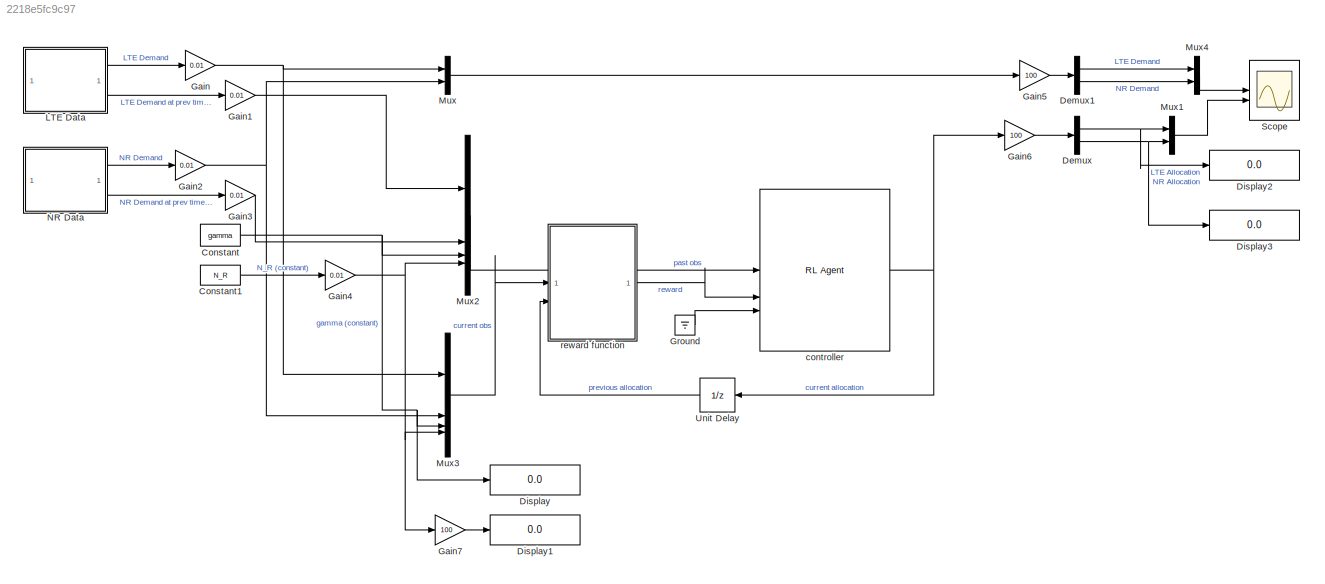
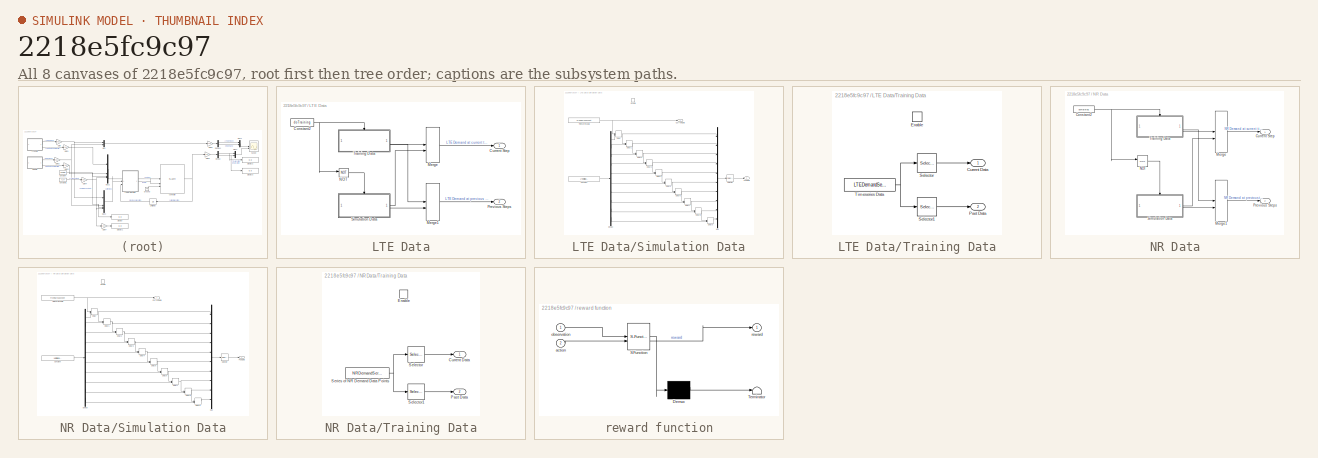
[diagram: thumbnail index - all 8 canvases of the model, root first then tree order]
MODEL slx_2218e5fc9c97
KIND model
CONFIG AbsTol = auto
CONFIG EnableMultiTasking = off
CONFIG FixedStep = auto
CONFIG MaxStep = auto
CONFIG MinStep = auto
CONFIG RelTol = 1e-3
CONFIG SampleTimeConstraint = Unconstrained
CONFIG SolverName = VariableStepAuto
CONFIG StartTime = 0.0
CONFIG StopTime = 30
BLOCK [Constant] Constant
  Value = gamma
BLOCK [Constant] Constant1
  Value = N_R
BLOCK [Demux] Demux
  Outputs = 2
BLOCK [Demux] Demux1
  Outputs = 2
BLOCK [Display] Display
  Decimation = 1
BLOCK [Display] Display1
  Decimation = 1
BLOCK [Display] Display2
  Decimation = 1
BLOCK [Display] Display3
  Decimation = 1
BLOCK [Gain] Gain
  Gain = 0.01
BLOCK [Gain] Gain1
  Gain = 0.01
BLOCK [Gain] Gain2
  Gain = 0.01
BLOCK [Gain] Gain3
  Gain = 0.01
BLOCK [Gain] Gain4
  Gain = 0.01
BLOCK [Gain] Gain5
  Gain = 100
BLOCK [Gain] Gain6
  Gain = 100
BLOCK [Gain] Gain7
  Gain = 100
BLOCK [Ground] Ground
BLOCK [SubSystem] LTE Data
BLOCK [Constant] LTE Data/Constant2
  Value = doTraining
BLOCK [Outport] LTE Data/Current Step
BLOCK [Merge] LTE Data/Merge
BLOCK [Merge] LTE Data/Merge1
BLOCK [Logic] LTE Data/NOT
  AllPortsSameDT = off
  Operator = NOT
  OutDataTypeStr = boolean
BLOCK [Outport] LTE Data/Previous Steps
  Port = 2
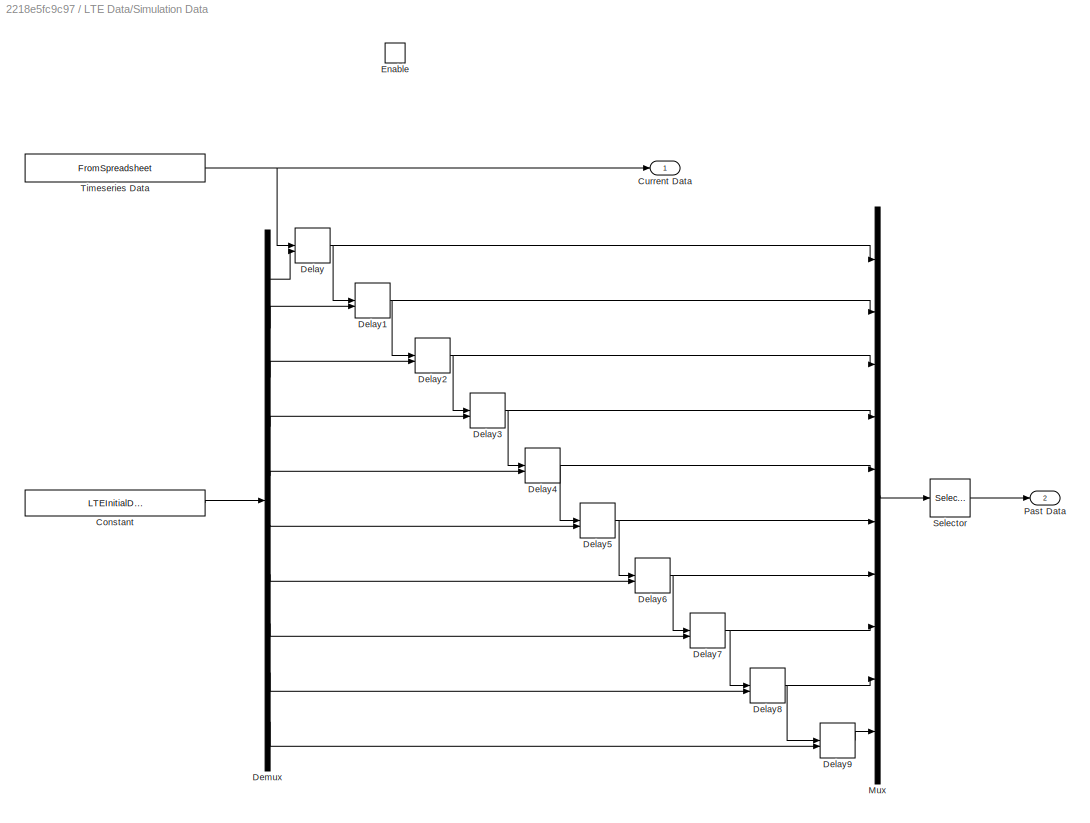
BLOCK [SubSystem] LTE Data/Simulation Data
  TreatAsAtomicUnit = on
BLOCK [Constant] LTE Data/Simulation Data/Constant
  Value = LTEInitialDemand
BLOCK [Outport] LTE Data/Simulation Data/Current Data
BLOCK [Delay] LTE Data/Simulation Data/Delay
  DelayLength = 1
  InitialConditionSource = Input port
  InputPortMap = u0,p4
BLOCK [Delay] LTE Data/Simulation Data/Delay1
  DelayLength = 1
  InitialConditionSource = Input port
  InputPortMap = u0,p4
BLOCK [Delay] LTE Data/Simulation Data/Delay2
  DelayLength = 1
  InitialConditionSource = Input port
  InputPortMap = u0,p4
BLOCK [Delay] LTE Data/Simulation Data/Delay3
  DelayLength = 1
  InitialConditionSource = Input port
  InputPortMap = u0,p4
BLOCK [Delay] LTE Data/Simulation Data/Delay4
  DelayLength = 1
  InitialConditionSource = Input port
  InputPortMap = u0,p4
BLOCK [Delay] LTE Data/Simulation Data/Delay5
  DelayLength = 1
  InitialConditionSource = Input port
  InputPortMap = u0,p4
BLOCK [Delay] LTE Data/Simulation Data/Delay6
  DelayLength = 1
  InitialConditionSource = Input port
  InputPortMap = u0,p4
BLOCK [Delay] LTE Data/Simulation Data/Delay7
  DelayLength = 1
  InitialConditionSource = Input port
  InputPortMap = u0,p4
BLOCK [Delay] LTE Data/Simulation Data/Delay8
  DelayLength = 1
  InitialConditionSource = Input port
  InputPortMap = u0,p4
BLOCK [Delay] LTE Data/Simulation Data/Delay9
  DelayLength = 1
  InitialConditionSource = Input port
  InputPortMap = u0,p4
BLOCK [Demux] LTE Data/Simulation Data/Demux
  Outputs = 10
BLOCK [EnablePort] LTE Data/Simulation Data/Enable
BLOCK [Mux] LTE Data/Simulation Data/Mux
  DisplayOption = bar
  Inputs = 10
BLOCK [Outport] LTE Data/Simulation Data/Past Data
  Port = 2
BLOCK [Selector] LTE Data/Simulation Data/Selector
  IndexOptions = Index vector (dialog)
  Indices = 1:numPastDataPoints
  InputPortWidth = 10
  OutputSizes = 1
BLOCK [FromSpreadsheet] LTE Data/Simulation Data/Timeseries Data
  FileName = LTE_Demand_0.xlsx
  OutputAfterLastPoint = Hold final value
  Range = B1:B861
  SampleTime = 1
  SheetName = Output_2115_hourly
  TreatFirstColumnAs = Data
BLOCK [SubSystem] LTE Data/Training Data
  TreatAsAtomicUnit = on
BLOCK [Outport] LTE Data/Training Data/Current Data
BLOCK [EnablePort] LTE Data/Training Data/Enable
BLOCK [Outport] LTE Data/Training Data/Past Data
  Port = 2
BLOCK [Selector] LTE Data/Training Data/Selector
  IndexOptions = Index vector (dialog)
  Indices = 1
  InputPortWidth = numPastDataPoints + 1
  OutputSizes = 1
BLOCK [Selector] LTE Data/Training Data/Selector1
  IndexOptions = Index vector (dialog)
  Indices = 2:numPastDataPoints+1
  InputPortWidth = numPastDataPoints + 1
  OutputSizes = 1
BLOCK [Constant] LTE Data/Training Data/Timeseries Data
  Value = LTEDemandSeries
BLOCK [Mux] Mux
  DisplayOption = bar
  Inputs = 2
BLOCK [Mux] Mux1
  DisplayOption = bar
  Inputs = 2
BLOCK [Mux] Mux2
  DisplayOption = bar
BLOCK [Mux] Mux3
  DisplayOption = bar
BLOCK [Mux] Mux4
  DisplayOption = bar
  Inputs = 2
BLOCK [SubSystem] NR Data
BLOCK [Constant] NR Data/Constant2
  Value = doTraining
BLOCK [Outport] NR Data/Current Step
BLOCK [Merge] NR Data/Merge
BLOCK [Merge] NR Data/Merge1
BLOCK [Logic] NR Data/NOT
  AllPortsSameDT = off
  Operator = NOT
  OutDataTypeStr = boolean
BLOCK [Outport] NR Data/Previous Steps
  Port = 2
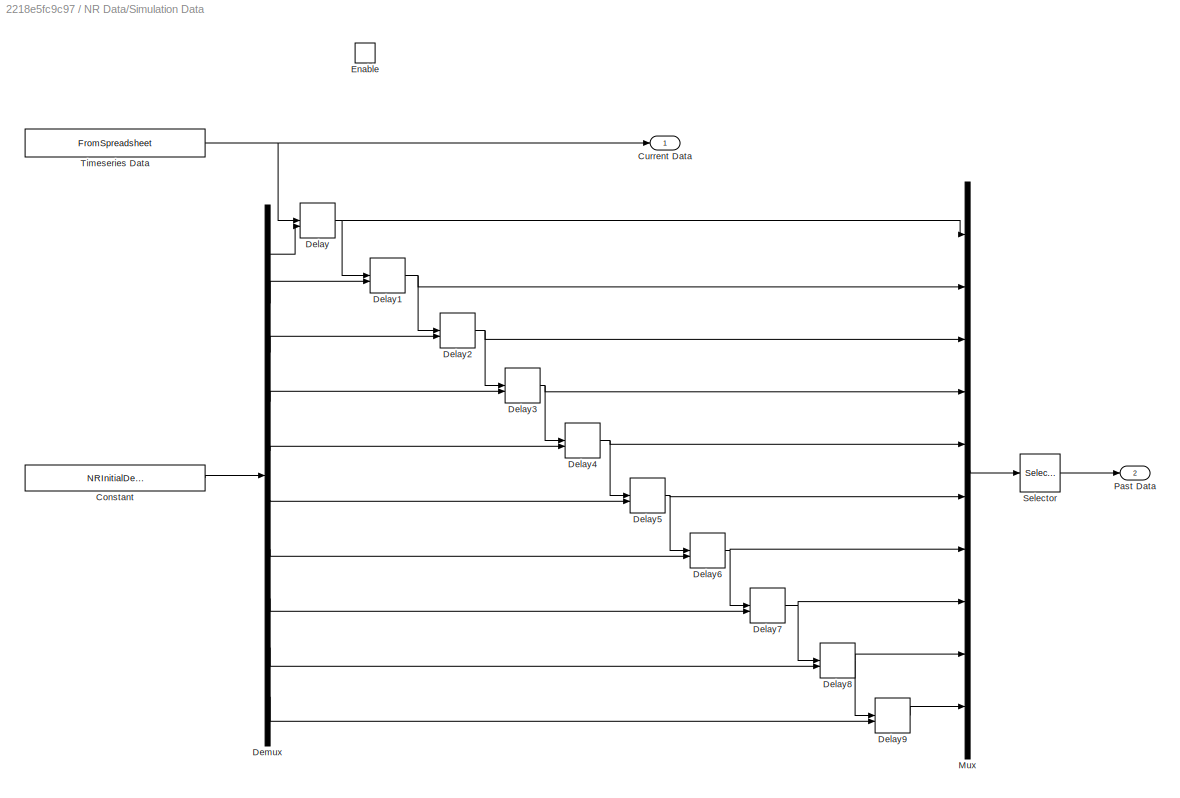
BLOCK [SubSystem] NR Data/Simulation Data
  TreatAsAtomicUnit = on
BLOCK [Constant] NR Data/Simulation Data/Constant
  Value = NRInitialDemand
BLOCK [Outport] NR Data/Simulation Data/Current Data
BLOCK [Delay] NR Data/Simulation Data/Delay
  DelayLength = 1
  InitialConditionSource = Input port
  InputPortMap = u0,p4
BLOCK [Delay] NR Data/Simulation Data/Delay1
  DelayLength = 1
  InitialConditionSource = Input port
  InputPortMap = u0,p4
BLOCK [Delay] NR Data/Simulation Data/Delay2
  DelayLength = 1
  InitialConditionSource = Input port
  InputPortMap = u0,p4
BLOCK [Delay] NR Data/Simulation Data/Delay3
  DelayLength = 1
  InitialConditionSource = Input port
  InputPortMap = u0,p4
BLOCK [Delay] NR Data/Simulation Data/Delay4
  DelayLength = 1
  InitialConditionSource = Input port
  InputPortMap = u0,p4
BLOCK [Delay] NR Data/Simulation Data/Delay5
  DelayLength = 1
  InitialConditionSource = Input port
  InputPortMap = u0,p4
BLOCK [Delay] NR Data/Simulation Data/Delay6
  DelayLength = 1
  InitialConditionSource = Input port
  InputPortMap = u0,p4
BLOCK [Delay] NR Data/Simulation Data/Delay7
  DelayLength = 1
  InitialConditionSource = Input port
  InputPortMap = u0,p4
BLOCK [Delay] NR Data/Simulation Data/Delay8
  DelayLength = 1
  InitialConditionSource = Input port
  InputPortMap = u0,p4
BLOCK [Delay] NR Data/Simulation Data/Delay9
  DelayLength = 1
  InitialConditionSource = Input port
  InputPortMap = u0,p4
BLOCK [Demux] NR Data/Simulation Data/Demux
  Outputs = 10
BLOCK [EnablePort] NR Data/Simulation Data/Enable
BLOCK [Mux] NR Data/Simulation Data/Mux
  DisplayOption = bar
  Inputs = 10
BLOCK [Outport] NR Data/Simulation Data/Past Data
  Port = 2
BLOCK [Selector] NR Data/Simulation Data/Selector
  IndexOptions = Index vector (dialog)
  Indices = 1:numPastDataPoints
  InputPortWidth = 10
  OutputSizes = 1
BLOCK [FromSpreadsheet] NR Data/Simulation Data/Timeseries Data
  FileName = NR_Demand_0.xlsx
  OutputAfterLastPoint = Hold final value
  Range = B11:B861
  SampleTime = 1
  SheetName = Output_2115_hourly_NR
  TreatFirstColumnAs = Data
BLOCK [SubSystem] NR Data/Training Data
  TreatAsAtomicUnit = on
BLOCK [Outport] NR Data/Training Data/Current Data
BLOCK [EnablePort] NR Data/Training Data/Enable
BLOCK [Outport] NR Data/Training Data/Past Data
  Port = 2
BLOCK [Selector] NR Data/Training Data/Selector
  IndexOptions = Index vector (dialog)
  Indices = 1
  InputPortWidth = numPastDataPoints + 1
  OutputSizes = 1
BLOCK [Selector] NR Data/Training Data/Selector1
  IndexOptions = Index vector (dialog)
  Indices = 2:numPastDataPoints+1
  InputPortWidth = numPastDataPoints + 1
  OutputSizes = 1
BLOCK [Constant] NR Data/Training Data/Series of NR Demand Data Points
  Value = NRDemandSeries
BLOCK [Scope] Scope
  Floating = off
  NumInputPorts = 2
  ScopeSpecificationString = Simulink.scopes.TimeScopeBlockCfg('CurrentConfiguration', extmgr.ConfigurationSet(extmgr.Configuration('Core','General UI',true),extmgr.Configuration('Core','Source UI',true),extmgr.Configuration('Sources','WiredSimulink',true),extmgr.Configuration('Visuals','Time Domain',true,'SerializedDisplays',{struct('MinYLimReal','2.85653','MaxYLimReal','28.9655','YLabelReal','','MinYLimMag','2.85653','MaxYL...<+1601ch>
BLOCK [UnitDelay] Unit Delay
  HasFrameUpgradeWarning = on
  InitialCondition = initAllocation
  SampleTime = -1
BLOCK [Reference] controller  REF=rllib/RL Agent
  SourceBlock = rllib/RL Agent
  SourceType = RL Agent
BLOCK [SubSystem] reward function
  ErrorFcn = Stateflow.Translate.translate
  PermitHierarchicalResolution = ExplicitOnly
  SFBlockType = MATLAB Function
  TreatAsAtomicUnit = on
BLOCK [Demux] reward function/ Demux 
  Outputs = 1
BLOCK [S-Function] reward function/ SFunction 
  EnableBusSupport = on
  FunctionName = sf_sfun
  PortCounts = [2 2]
  SFcnIsStateOwnerBlock = off
  SFunctionDeploymentMode = off
  Tag = Stateflow S-Function 1
BLOCK [Terminator] reward function/ Terminator 
BLOCK [Inport] reward function/action
  Port = 2
BLOCK [Inport] reward function/observation
BLOCK [Outport] reward function/reward
LINE Constant1:1 -> Gain4:1
NET Constant:1 -> Display:1, Mux2:3, Mux3:3
LINE Demux1:1 -> Mux4:1
LINE Demux1:2 -> Mux4:2
NET Demux:1 -> Display2:1, Mux1:1
NET Demux:2 -> Display3:1, Mux1:2
LINE Gain1:1 -> Mux2:1
NET Gain2:1 -> Mux3:2, Mux:2
LINE Gain3:1 -> Mux2:2
NET Gain4:1 -> Gain7:1, Mux2:4, Mux3:4
LINE Gain5:1 -> Demux1:1
LINE Gain6:1 -> Demux:1
LINE Gain7:1 -> Display1:1
NET Gain:1 -> Mux3:1, Mux:1
LINE Ground:1 -> controller:3
NET LTE Data/Constant2:1 -> LTE Data/NOT:1, LTE Data/Training Data:enable
LINE LTE Data/Merge1:1 -> LTE Data/Previous Steps:1
LINE LTE Data/Merge:1 -> LTE Data/Current Step:1
LINE LTE Data/NOT:1 -> LTE Data/Simulation Data:enable
LINE LTE Data/Simulation Data/Constant:1 -> LTE Data/Simulation Data/Demux:1
NET LTE Data/Simulation Data/Delay1:1 -> LTE Data/Simulation Data/Delay2:1, LTE Data/Simulation Data/Mux:2
NET LTE Data/Simulation Data/Delay2:1 -> LTE Data/Simulation Data/Delay3:1, LTE Data/Simulation Data/Mux:3
NET LTE Data/Simulation Data/Delay3:1 -> LTE Data/Simulation Data/Delay4:1, LTE Data/Simulation Data/Mux:4
NET LTE Data/Simulation Data/Delay4:1 -> LTE Data/Simulation Data/Delay5:1, LTE Data/Simulation Data/Mux:5
NET LTE Data/Simulation Data/Delay5:1 -> LTE Data/Simulation Data/Delay6:1, LTE Data/Simulation Data/Mux:6
NET LTE Data/Simulation Data/Delay6:1 -> LTE Data/Simulation Data/Delay7:1, LTE Data/Simulation Data/Mux:7
NET LTE Data/Simulation Data/Delay7:1 -> LTE Data/Simulation Data/Delay8:1, LTE Data/Simulation Data/Mux:8
NET LTE Data/Simulation Data/Delay8:1 -> LTE Data/Simulation Data/Delay9:1, LTE Data/Simulation Data/Mux:9
LINE LTE Data/Simulation Data/Delay9:1 -> LTE Data/Simulation Data/Mux:10
NET LTE Data/Simulation Data/Delay:1 -> LTE Data/Simulation Data/Delay1:1, LTE Data/Simulation Data/Mux:1
LINE LTE Data/Simulation Data/Demux:1 -> LTE Data/Simulation Data/Delay:2
LINE LTE Data/Simulation Data/Demux:10 -> LTE Data/Simulation Data/Delay9:2
LINE LTE Data/Simulation Data/Demux:2 -> LTE Data/Simulation Data/Delay1:2
LINE LTE Data/Simulation Data/Demux:3 -> LTE Data/Simulation Data/Delay2:2
LINE LTE Data/Simulation Data/Demux:4 -> LTE Data/Simulation Data/Delay3:2
LINE LTE Data/Simulation Data/Demux:5 -> LTE Data/Simulation Data/Delay4:2
LINE LTE Data/Simulation Data/Demux:6 -> LTE Data/Simulation Data/Delay5:2
LINE LTE Data/Simulation Data/Demux:7 -> LTE Data/Simulation Data/Delay6:2
LINE LTE Data/Simulation Data/Demux:8 -> LTE Data/Simulation Data/Delay7:2
LINE LTE Data/Simulation Data/Demux:9 -> LTE Data/Simulation Data/Delay8:2
LINE LTE Data/Simulation Data/Mux:1 -> LTE Data/Simulation Data/Selector:1
LINE LTE Data/Simulation Data/Selector:1 -> LTE Data/Simulation Data/Past Data:1
NET LTE Data/Simulation Data/Timeseries Data:1 -> LTE Data/Simulation Data/Current Data:1, LTE Data/Simulation Data/Delay:1
LINE LTE Data/Simulation Data:1 -> LTE Data/Merge:2
LINE LTE Data/Simulation Data:2 -> LTE Data/Merge1:2
LINE LTE Data/Training Data/Selector1:1 -> LTE Data/Training Data/Past Data:1
LINE LTE Data/Training Data/Selector:1 -> LTE Data/Training Data/Current Data:1
NET LTE Data/Training Data/Timeseries Data:1 -> LTE Data/Training Data/Selector1:1, LTE Data/Training Data/Selector:1
LINE LTE Data/Training Data:1 -> LTE Data/Merge:1
LINE LTE Data/Training Data:2 -> LTE Data/Merge1:1
LINE LTE Data:1 -> Gain:1
LINE LTE Data:2 -> Gain1:1
LINE Mux1:1 -> Scope:2
LINE Mux2:1 -> controller:1
LINE Mux3:1 -> reward function:1
LINE Mux4:1 -> Scope:1
LINE Mux:1 -> Gain5:1
NET NR Data/Constant2:1 -> NR Data/NOT:1, NR Data/Training Data:enable
LINE NR Data/Merge1:1 -> NR Data/Previous Steps:1
LINE NR Data/Merge:1 -> NR Data/Current Step:1
LINE NR Data/NOT:1 -> NR Data/Simulation Data:enable
LINE NR Data/Simulation Data/Constant:1 -> NR Data/Simulation Data/Demux:1
NET NR Data/Simulation Data/Delay1:1 -> NR Data/Simulation Data/Delay2:1, NR Data/Simulation Data/Mux:2
NET NR Data/Simulation Data/Delay2:1 -> NR Data/Simulation Data/Delay3:1, NR Data/Simulation Data/Mux:3
NET NR Data/Simulation Data/Delay3:1 -> NR Data/Simulation Data/Delay4:1, NR Data/Simulation Data/Mux:4
NET NR Data/Simulation Data/Delay4:1 -> NR Data/Simulation Data/Delay5:1, NR Data/Simulation Data/Mux:5
NET NR Data/Simulation Data/Delay5:1 -> NR Data/Simulation Data/Delay6:1, NR Data/Simulation Data/Mux:6
NET NR Data/Simulation Data/Delay6:1 -> NR Data/Simulation Data/Delay7:1, NR Data/Simulation Data/Mux:7
NET NR Data/Simulation Data/Delay7:1 -> NR Data/Simulation Data/Delay8:1, NR Data/Simulation Data/Mux:8
NET NR Data/Simulation Data/Delay8:1 -> NR Data/Simulation Data/Delay9:1, NR Data/Simulation Data/Mux:9
LINE NR Data/Simulation Data/Delay9:1 -> NR Data/Simulation Data/Mux:10
NET NR Data/Simulation Data/Delay:1 -> NR Data/Simulation Data/Delay1:1, NR Data/Simulation Data/Mux:1
LINE NR Data/Simulation Data/Demux:1 -> NR Data/Simulation Data/Delay:2
LINE NR Data/Simulation Data/Demux:10 -> NR Data/Simulation Data/Delay9:2
LINE NR Data/Simulation Data/Demux:2 -> NR Data/Simulation Data/Delay1:2
LINE NR Data/Simulation Data/Demux:3 -> NR Data/Simulation Data/Delay2:2
LINE NR Data/Simulation Data/Demux:4 -> NR Data/Simulation Data/Delay3:2
LINE NR Data/Simulation Data/Demux:5 -> NR Data/Simulation Data/Delay4:2
LINE NR Data/Simulation Data/Demux:6 -> NR Data/Simulation Data/Delay5:2
LINE NR Data/Simulation Data/Demux:7 -> NR Data/Simulation Data/Delay6:2
LINE NR Data/Simulation Data/Demux:8 -> NR Data/Simulation Data/Delay7:2
LINE NR Data/Simulation Data/Demux:9 -> NR Data/Simulation Data/Delay8:2
LINE NR Data/Simulation Data/Mux:1 -> NR Data/Simulation Data/Selector:1
LINE NR Data/Simulation Data/Selector:1 -> NR Data/Simulation Data/Past Data:1
NET NR Data/Simulation Data/Timeseries Data:1 -> NR Data/Simulation Data/Current Data:1, NR Data/Simulation Data/Delay:1
LINE NR Data/Simulation Data:1 -> NR Data/Merge:2
LINE NR Data/Simulation Data:2 -> NR Data/Merge1:2
LINE NR Data/Training Data/Selector1:1 -> NR Data/Training Data/Past Data:1
LINE NR Data/Training Data/Selector:1 -> NR Data/Training Data/Current Data:1
NET NR Data/Training Data/Series of NR Demand Data Points:1 -> NR Data/Training Data/Selector1:1, NR Data/Training Data/Selector:1
LINE NR Data/Training Data:1 -> NR Data/Merge:1
LINE NR Data/Training Data:2 -> NR Data/Merge1:1
LINE NR Data:1 -> Gain2:1
LINE NR Data:2 -> Gain3:1
LINE Unit Delay:1 -> reward function:2
NET controller:1 -> Gain6:1, Unit Delay:1
LINE reward function:1 -> controller:2
note: NET lines group one-source signal fan-out (src -> all destinations, sorted); 1:1 wires keep LINE
CHART reward function states=1 transitions=1
  STATE_LABEL 'eML_blk_kernel()'
  STATE_LABEL 'SCRIPT:\nfunction reward = reward(observation,action)\n\nD_A = observation(1);\nD_B = observation(2);\nw_A = observation(3);\nw_B = 1-w_A;\nN_R = observation(4);\nN_A = action(1);\nN_B = action(2);\n\nif D_A + D_B - N_R > 0\n    if N_A + N_B - N_R > 0\n       reward = -(w_A*(((N_A - D_A)/D_A)^2) + w_B*(((N_B - D_B)/D_B)^2)) - (10*(w_A*(((N_A - D_A)/D_A)^2) + w_B*(((N_B - D_B)/D_B)^2)));\n    elseif N_A == 0 || ...<+2104ch>'
CHART  states=0 transitions=0
